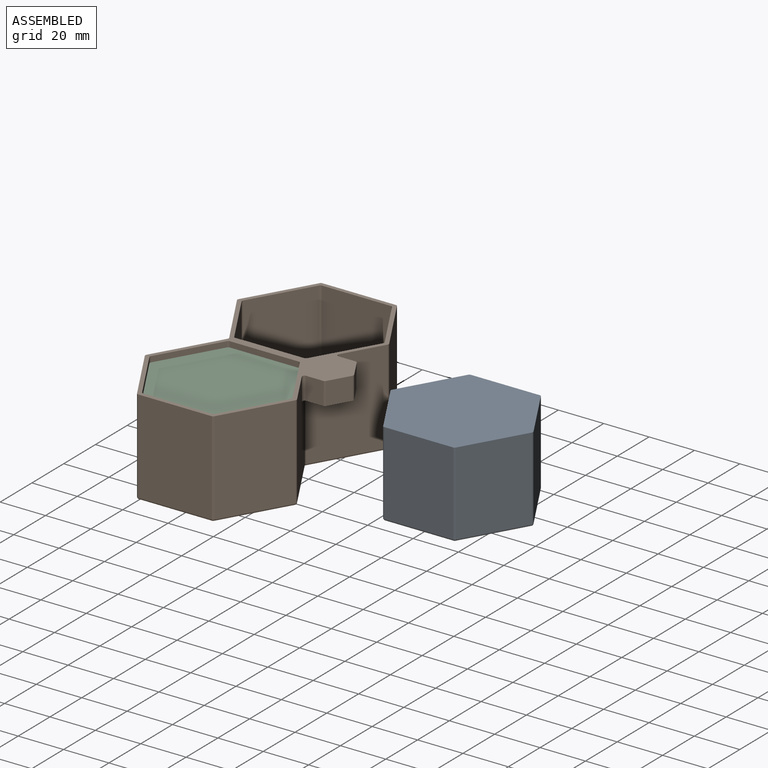
[diagram: assembled view]
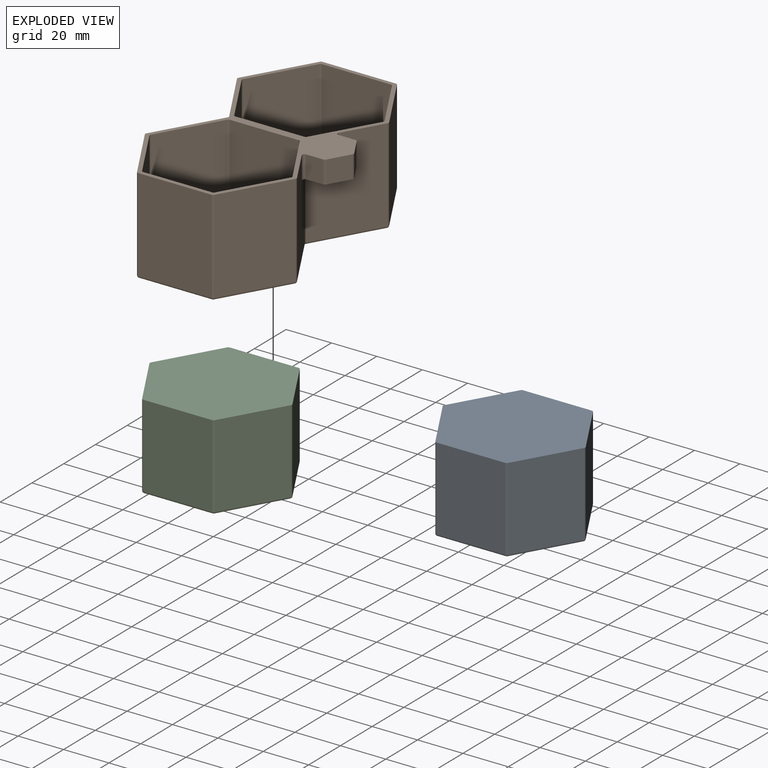
[diagram: exploded view]
GUIDED TOUR — MATED ASSEMBLY (Onshape document 8a8716e351e1fd691452806f, AutoMate assembly 8a8716e351e1fd691452806f_4f7bf178a365c5dd952efb9d_3188260d9f0f7e913d68dd80_default)

This assembly has 3 components, labeled P0..P2 below (a component is one placed occurrence of a part; the same part can appear more than once), held together by 1 mate. A mate is a constraint between two components; its type names the relative motion it leaves free:
  PLANAR — leaves sliding in the plane through the listed point (normal = the listed direction) and rotation about that normal free.
Axis/direction vectors are unit vectors and 'through' points are millimeter coordinates, both in the assembly's world frame.

MATES
  1. PLANAR "Planar 1": P2 <-> P1, direction (0.000, 0.000, -1.000) through (56.00, -6.64, 21.05) mm

ASSEMBLY ORDER
  1. P2 — the base component [order verified]
  2. P1 [order verified]
  3. P0 [order verified]
Order-tag legend:
  [order verified] — this step's position reverses a verified removal order: the component was checked to insert without passing through the ones already placed.

Of the 3 components, 1 carries the full construction recipe — the FeatureScript program that regenerates the part's solid from scratch; the rest are supplied as boundary geometry only.
Each toured component is shown spotlighted twice — in the assembled view, then in the exploded view, where a leader line traces a displaced component back to its assembled socket (saturated green if recipe-attached, orange if geometry-only; every other component desaturated gray) — followed by its recipe or geometry summary and the mates that hold it.
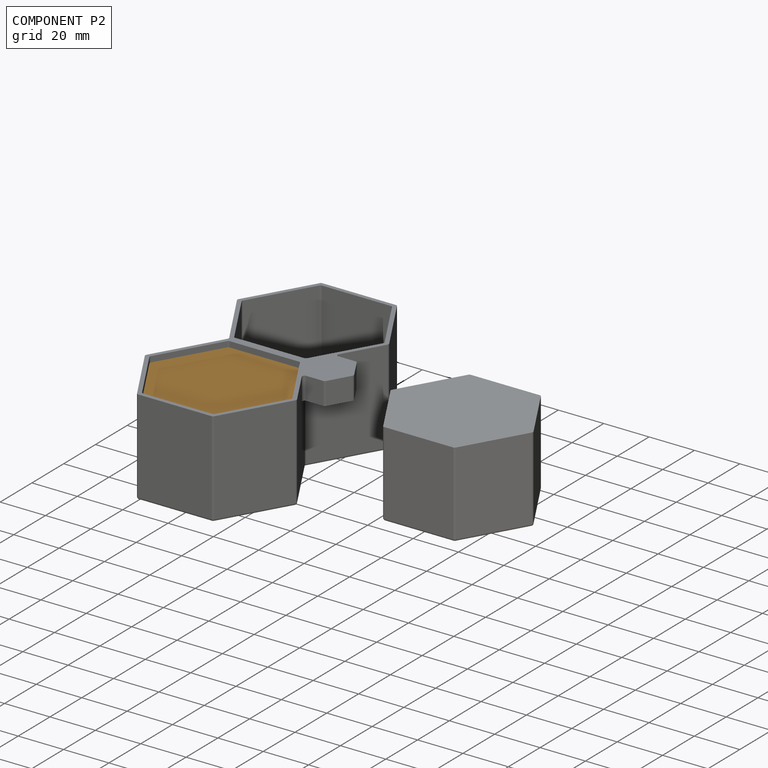
[diagram: component P2 — assembled]
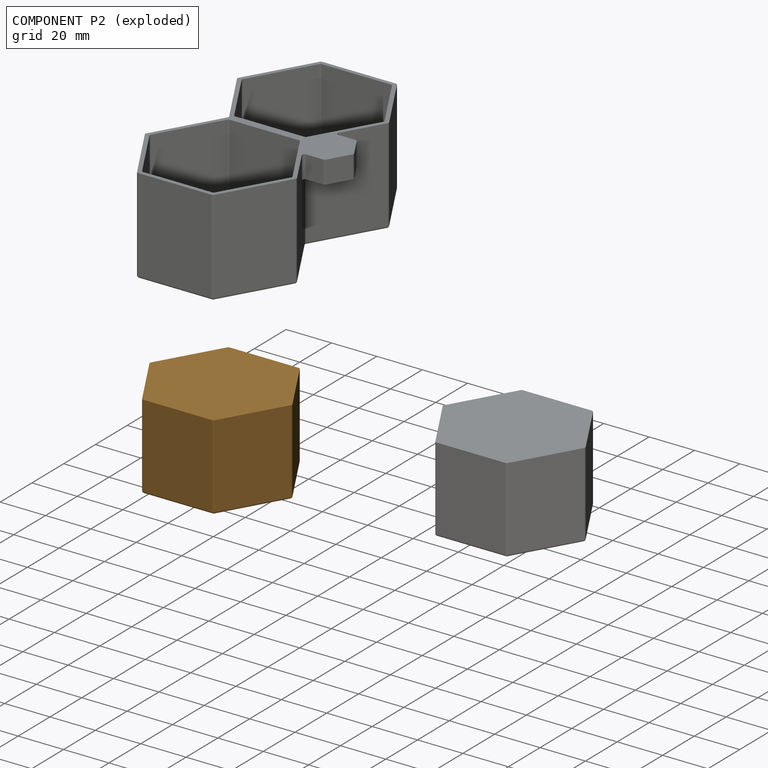
[diagram: component P2 — exploded]
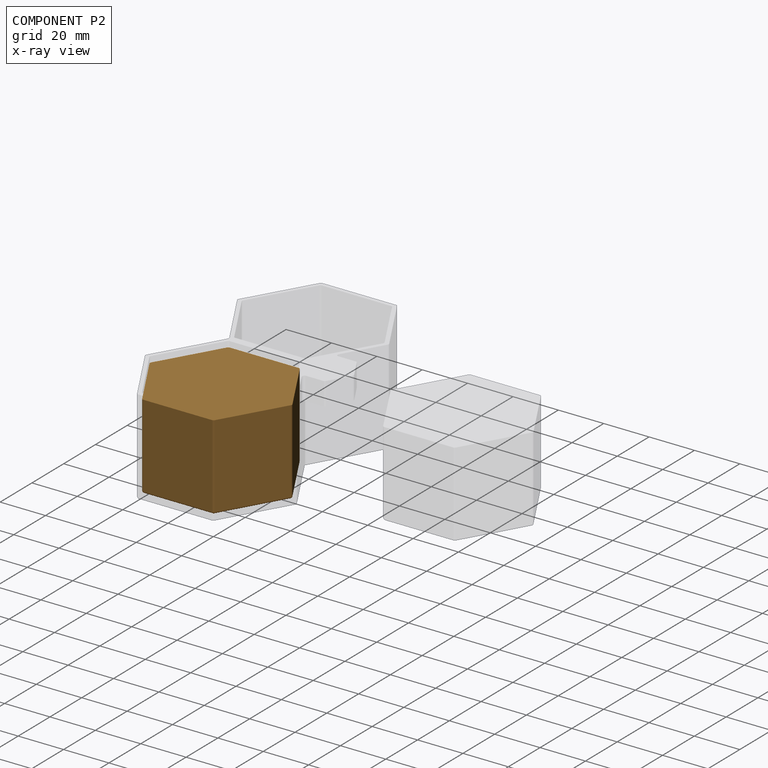
[diagram: component P2 — x-ray view]
COMPONENT P2 — geometry summary (no construction recipe available for this part):
  bounding box: 62.6 x 54.5 x 37.5 mm
  B-rep topology: 1 solid, 26 faces, 114 edges
  volume: 96410 mm^3 (75% of its bounding box)
  symmetry: 2-fold rotationally symmetric about the x axis; 2-fold rotationally symmetric about the y axis; 6-fold rotationally symmetric about the z axis; mirror-symmetric across its x mid-plane, y mid-plane, z mid-plane
Held by: PLANAR mate "Planar 1" to P1.
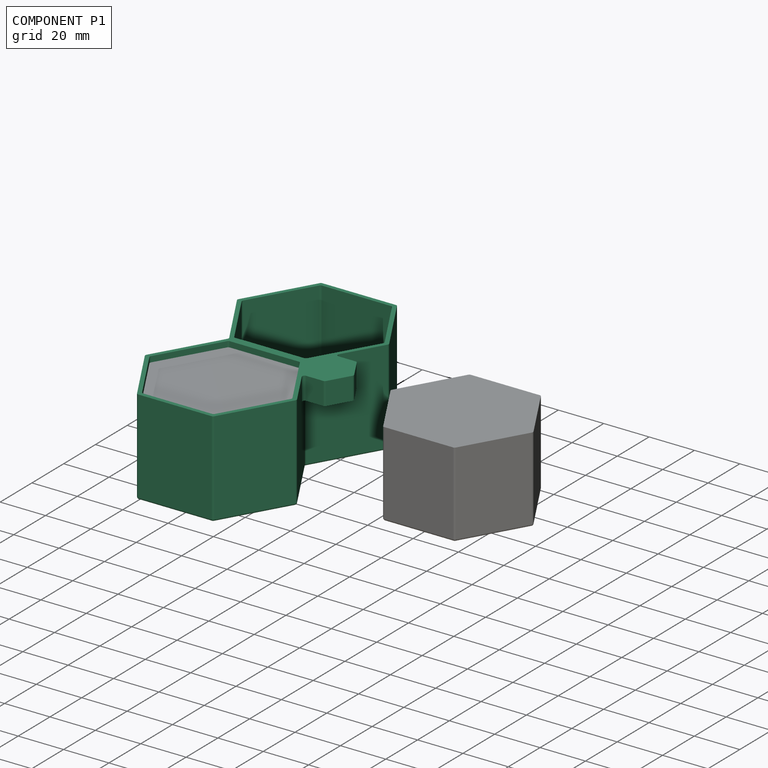
[diagram: component P1 — assembled]
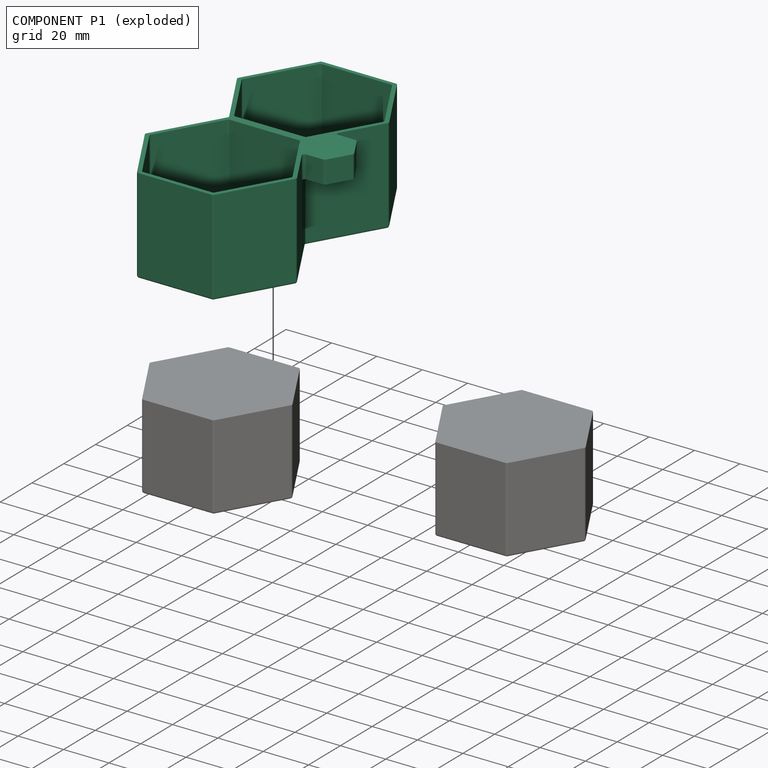
[diagram: component P1 — exploded]
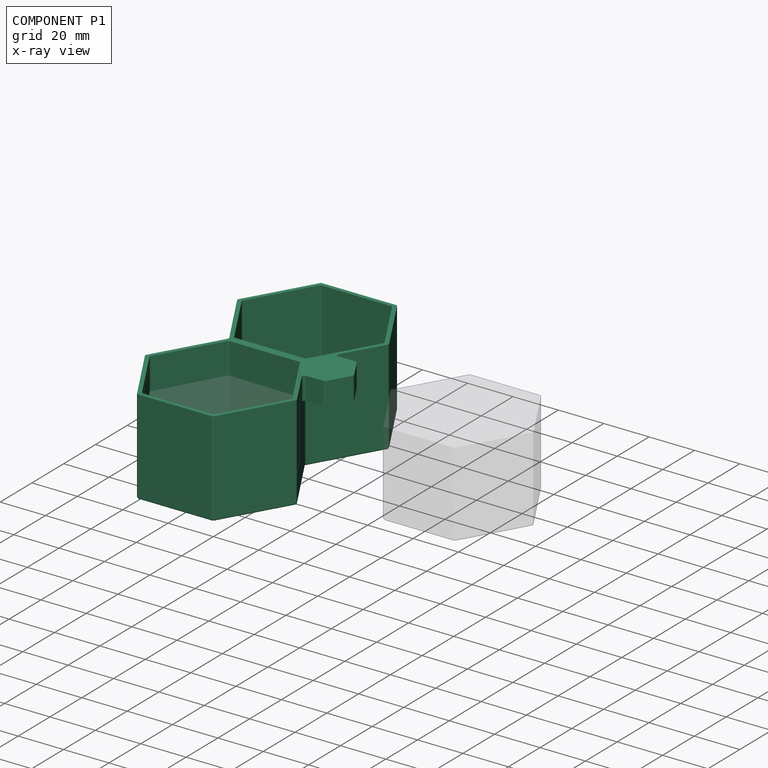
[diagram: component P1 — x-ray view]
COMPONENT P1 — recipe-attached (CADFS 00173060, mesh-verified: the recipe's output STEP matches this component's geometry to below the mesh-comparison resolution (tessellation chordal tolerance ~0.214 mm)).
Held by: PLANAR mate "Planar 1" to P2.
Construction recipe (FeatureScript — the CAD program that rebuilds this solid; sketch coordinates are in the units given by the * unit suffixes, e.g. mm):

FeatureScript 1511;
import(path : "onshape/std/geometry.fs", version : "1511.0");
import(path : "onshape/std/common.fs", version : "1511.0");
const mm = millimeter;
const VERTEX = EntityType.VERTEX;
const EDGE = EntityType.EDGE;
const FACE = EntityType.FACE;
const BODY = EntityType.BODY;
function v(x, y){return vector(x, y);}
function OD(order){return orderDisambiguation(order);}
function OSD(set){return originalSetDisambiguation(set);}
function TD(topology){return topologyDisambiguation(topology);}
function TDD(query){return trueDependencyDisambiguation(query);}
function sQuery(a, b, c) {return sketchEntityQuery(a, b, c);}

annotation { "Feature Type Name" : "Feature", "Feature Type Description" : "" }
export const myFeature = defineFeature(function(context is Context, id is Id, definition is map)
    precondition{}
    {
        {
            var Q0;
            Q0=qCreatedBy(makeId("Top.planeOp"),FACE);
            var sketch = newSketch(context, id + "F0", { "sketchPlane" : qUnion([Q0])});
            skLineSegment(sketch, "E0.1", {"start": v(-16.74, 0) * mm, "end": v(-33.49, 29) * mm});
            skLineSegment(sketch, "E0.2", {"start": v(-33.49, 29) * mm, "end": v(-16.74, 58) * mm});
            skLineSegment(sketch, "E0.3", {"start": v(-16.74, 58) * mm, "end": v(16.74, 58) * mm});
            skLineSegment(sketch, "E0.4", {"start": v(16.74, 58) * mm, "end": v(33.49, 29) * mm});
            skLineSegment(sketch, "E0.5", {"start": v(33.49, 29) * mm, "end": v(16.74, 0) * mm});
            skLineSegment(sketch, "E1.1", {"start": v(16.74, 0) * mm, "end": v(33.49, -29) * mm});
            skLineSegment(sketch, "E1.2", {"start": v(33.49, -29) * mm, "end": v(16.74, -58) * mm});
            skLineSegment(sketch, "E1.3", {"start": v(16.74, -58) * mm, "end": v(-16.74, -58) * mm});
            skLineSegment(sketch, "E1.4", {"start": v(-16.74, -58) * mm, "end": v(-33.49, -29) * mm});
            skLineSegment(sketch, "E1.5", {"start": v(-33.49, -29) * mm, "end": v(-16.74, 0) * mm});
            skSolve(sketch);
        }
        {
            var Q0;
            Q0 = qSketchRegion(id + "F0", true);
            extrude(context, id + "F1", {"entities" : qUnion([Q0]), "depth" : 42 * mm});
        }
        {
            var Q0;
            Q0=makeQuery(id+"F1.opExtrude","CAP_FACE",FACE,{"disambiguationData":[OSD([sQuery(id+"F0.wireOp",EDGE,"E0.1"),sQuery(id+"F0.wireOp",EDGE,"E0.2"),sQuery(id+"F0.wireOp",EDGE,"E0.3"),sQuery(id+"F0.wireOp",EDGE,"E0.4"),sQuery(id+"F0.wireOp",EDGE,"E0.5"),sQuery(id+"F0.wireOp",EDGE,"E1.1"),sQuery(id+"F0.wireOp",EDGE,"E1.2"),sQuery(id+"F0.wireOp",EDGE,"E1.3"),sQuery(id+"F0.wireOp",EDGE,"E1.4"),sQuery(id+"F0.wireOp",EDGE,"E1.5")])],"isStart":false});
            var sketch = newSketch(context, id + "F2", { "sketchPlane" : qUnion([Q0])});
            skLineSegment(sketch, "E2", {"start": v(0, 0) * mm, "end": v(0, -29) * mm});
            skLineSegment(sketch, "E3", {"start": v(0, 0) * mm, "end": v(0, 29) * mm});
            skCircle(sketch, "E4.cCircle", {"center": v(0, 29) * mm, "radius": 27.25 * mm, "construction": true});
            skLineSegment(sketch, "E4.0", {"start": v(15.73, 1.75) * mm, "end": v(-15.73, 1.75) * mm});
            skLineSegment(sketch, "E4.1", {"start": v(-15.73, 1.75) * mm, "end": v(-31.47, 29) * mm});
            skLineSegment(sketch, "E4.2", {"start": v(-31.47, 29) * mm, "end": v(-15.73, 56.25) * mm});
            skLineSegment(sketch, "E4.3", {"start": v(-15.73, 56.25) * mm, "end": v(15.73, 56.25) * mm});
            skLineSegment(sketch, "E4.4", {"start": v(15.73, 56.25) * mm, "end": v(31.47, 29) * mm});
            skLineSegment(sketch, "E4.5", {"start": v(31.47, 29) * mm, "end": v(15.73, 1.75) * mm});
            skPoint(sketch, "E4.0.midPoint", {"position": v(0, 1.75) * mm});
            skCircle(sketch, "E5.cCircle", {"center": v(0, -29) * mm, "radius": 27.25 * mm, "construction": true});
            skLineSegment(sketch, "E5.0", {"start": v(-15.73, -1.75) * mm, "end": v(15.73, -1.75) * mm});
            skLineSegment(sketch, "E5.1", {"start": v(15.73, -1.75) * mm, "end": v(31.47, -29) * mm});
            skLineSegment(sketch, "E5.2", {"start": v(31.47, -29) * mm, "end": v(15.73, -56.25) * mm});
            skLineSegment(sketch, "E5.3", {"start": v(15.73, -56.25) * mm, "end": v(-15.73, -56.25) * mm});
            skLineSegment(sketch, "E5.4", {"start": v(-15.73, -56.25) * mm, "end": v(-31.47, -29) * mm});
            skLineSegment(sketch, "E5.5", {"start": v(-31.47, -29) * mm, "end": v(-15.73, -1.75) * mm});
            skPoint(sketch, "E5.0.midPoint", {"position": v(0, -1.75) * mm});
            skSolve(sketch);
        }
        {
            var Q0;
            {var subQ0=sQuery(id+"F2.wireOp",EDGE,"E5.1");Q0=makeQuery(id+"F2.imprint","IMPRINT",FACE,{"disambiguationData":[TD([[makeQuery(id+"F2.imprint","IMPRINT",EDGE,{"derivedFrom":subQ0}),-1.0]])]});}
            var Q1;
            {var subQ0=sQuery(id+"F2.wireOp",EDGE,"E4.1");Q1=makeQuery(id+"F2.imprint","IMPRINT",FACE,{"disambiguationData":[TD([[makeQuery(id+"F2.imprint","IMPRINT",EDGE,{"derivedFrom":subQ0}),-1.0]])]});}
            extrude(context, id + "F3", {"entities" : qUnion([Q0, Q1]), "operationType" : NewBodyOperationType.REMOVE, "oppositeDirection" : true, "depth" : 40 * mm});
        }
        {
            var Q0;
            Q0=makeQuery(id+"F1.opExtrude","CAP_FACE",FACE,{"disambiguationData":[OSD([sQuery(id+"F0.wireOp",EDGE,"E0.1"),sQuery(id+"F0.wireOp",EDGE,"E0.2"),sQuery(id+"F0.wireOp",EDGE,"E0.3"),sQuery(id+"F0.wireOp",EDGE,"E0.4"),sQuery(id+"F0.wireOp",EDGE,"E0.5"),sQuery(id+"F0.wireOp",EDGE,"E1.1"),sQuery(id+"F0.wireOp",EDGE,"E1.2"),sQuery(id+"F0.wireOp",EDGE,"E1.3"),sQuery(id+"F0.wireOp",EDGE,"E1.4"),sQuery(id+"F0.wireOp",EDGE,"E1.5")])],"isStart":false});
            var sketch = newSketch(context, id + "F4", { "sketchPlane" : qUnion([Q0])});
            skCircle(sketch, "E6.cCircle", {"center": v(26.6, 0) * mm, "radius": 10.19 * mm, "construction": true});
            skLineSegment(sketch, "E6.0", {"start": v(20.73, 10.19) * mm, "end": v(32.49, 10.19) * mm});
            skLineSegment(sketch, "E6.1", {"start": v(32.49, 10.19) * mm, "end": v(38.37, 0) * mm});
            skLineSegment(sketch, "E6.2", {"start": v(38.37, 0) * mm, "end": v(32.49, -10.19) * mm});
            skLineSegment(sketch, "E6.3", {"start": v(32.49, -10.19) * mm, "end": v(20.73, -10.19) * mm});
            skLineSegment(sketch, "E6.4", {"start": v(20.73, -10.19) * mm, "end": v(14.85, 0) * mm});
            skLineSegment(sketch, "E6.5", {"start": v(14.85, 0) * mm, "end": v(20.73, 10.19) * mm});
            skPoint(sketch, "E6.0.midPoint", {"position": v(26.6, 10.19) * mm});
            skSolve(sketch);
        }
        {
            var Q0;
            Q0 = qSketchRegion(id + "F4", true);
            extrude(context, id + "F5", {"entities" : qUnion([Q0]), "operationType" : NewBodyOperationType.ADD, "oppositeDirection" : true, "depth" : 10 * mm});
        }
        {
            var Q0;
            Q0=makeQuery(id+"F5.opExtrude","CAP_FACE",FACE,{"disambiguationData":[OSD([sQuery(id+"F4.wireOp",EDGE,"E6.0"),sQuery(id+"F4.wireOp",EDGE,"E6.1"),sQuery(id+"F4.wireOp",EDGE,"E6.2"),sQuery(id+"F4.wireOp",EDGE,"E6.3"),sQuery(id+"F4.wireOp",EDGE,"E6.4"),sQuery(id+"F4.wireOp",EDGE,"E6.5")])],"isStart":false});
            shell(context, id + "F6", {"entities" : qUnion([Q0]), "thickness" : 1.5 * mm});
        }
        {
            var Q0;
            Q0=makeQuery(id+"F1.opExtrude","SWEPT_EDGE",EDGE,{"disambiguationData":[OSD([sQuery(id+"F0.wireOp",EDGE,"E1.4"),sQuery(id+"F0.wireOp",EDGE,"E1.5")])]});
            var Q1;
            Q1=makeQuery(id+"F1.opExtrude","SWEPT_EDGE",EDGE,{"disambiguationData":[OSD([sQuery(id+"F0.wireOp",EDGE,"E0.1"),sQuery(id+"F0.wireOp",EDGE,"E1.5")])]});
            var Q2;
            Q2=makeQuery(id+"F1.opExtrude","SWEPT_EDGE",EDGE,{"disambiguationData":[OSD([sQuery(id+"F0.wireOp",EDGE,"E0.1"),sQuery(id+"F0.wireOp",EDGE,"E0.2")])]});
            var Q3;
            Q3=makeQuery(id+"F1.opExtrude","SWEPT_EDGE",EDGE,{"disambiguationData":[OSD([sQuery(id+"F0.wireOp",EDGE,"E0.2"),sQuery(id+"F0.wireOp",EDGE,"E0.3")])]});
            var Q4;
            Q4=makeQuery(id+"F1.opExtrude","SWEPT_EDGE",EDGE,{"disambiguationData":[OSD([sQuery(id+"F0.wireOp",EDGE,"E1.3"),sQuery(id+"F0.wireOp",EDGE,"E1.4")])]});
            var Q5;
            Q5=makeQuery(id+"F1.opExtrude","SWEPT_EDGE",EDGE,{"disambiguationData":[OSD([sQuery(id+"F0.wireOp",EDGE,"E1.2"),sQuery(id+"F0.wireOp",EDGE,"E1.3")])]});
            var Q6;
            Q6=makeQuery(id+"F1.opExtrude","SWEPT_EDGE",EDGE,{"disambiguationData":[OSD([sQuery(id+"F0.wireOp",EDGE,"E1.1"),sQuery(id+"F0.wireOp",EDGE,"E1.2")])]});
            var Q7;
            Q7=makeQuery(id+"F1.opExtrude","SWEPT_EDGE",EDGE,{"disambiguationData":[OSD([sQuery(id+"F0.wireOp",EDGE,"E0.5"),sQuery(id+"F0.wireOp",EDGE,"E1.1")])]});
            var Q8;
            Q8=makeQuery(id+"F1.opExtrude","SWEPT_EDGE",EDGE,{"disambiguationData":[OSD([sQuery(id+"F0.wireOp",EDGE,"E0.4"),sQuery(id+"F0.wireOp",EDGE,"E0.5")])]});
            var Q9;
            Q9=makeQuery(id+"F1.opExtrude","SWEPT_EDGE",EDGE,{"disambiguationData":[OSD([sQuery(id+"F0.wireOp",EDGE,"E0.3"),sQuery(id+"F0.wireOp",EDGE,"E0.4")])]});
            var Q10;
            Q10=makeQuery(id+"F3.boolean.opBoolean","COPY",EDGE,{"derivedFrom":makeQuery(id+"F3.opExtrude","SWEPT_EDGE",EDGE,{"disambiguationData":[OSD([sQuery(id+"F2.wireOp",EDGE,"E4.1"),sQuery(id+"F2.wireOp",EDGE,"E4.2")])]})});
            var Q11;
            Q11=makeQuery(id+"F3.boolean.opBoolean","COPY",EDGE,{"derivedFrom":makeQuery(id+"F3.opExtrude","SWEPT_EDGE",EDGE,{"disambiguationData":[OSD([sQuery(id+"F2.wireOp",EDGE,"E4.2"),sQuery(id+"F2.wireOp",EDGE,"E4.3")])]})});
            var Q12;
            Q12=makeQuery(id+"F3.boolean.opBoolean","COPY",EDGE,{"derivedFrom":makeQuery(id+"F3.opExtrude","SWEPT_EDGE",EDGE,{"disambiguationData":[OSD([sQuery(id+"F2.wireOp",EDGE,"E4.3"),sQuery(id+"F2.wireOp",EDGE,"E4.4")])]})});
            var Q13;
            Q13=makeQuery(id+"F3.boolean.opBoolean","COPY",EDGE,{"derivedFrom":makeQuery(id+"F3.opExtrude","SWEPT_EDGE",EDGE,{"disambiguationData":[OSD([sQuery(id+"F2.wireOp",EDGE,"E4.4"),sQuery(id+"F2.wireOp",EDGE,"E4.5")])]})});
            var Q14;
            Q14=makeQuery(id+"F3.boolean.opBoolean","COPY",EDGE,{"derivedFrom":makeQuery(id+"F3.opExtrude","SWEPT_EDGE",EDGE,{"disambiguationData":[OSD([sQuery(id+"F2.wireOp",EDGE,"E4.0"),sQuery(id+"F2.wireOp",EDGE,"E4.5")])]})});
            var Q15;
            Q15=makeQuery(id+"F3.boolean.opBoolean","COPY",EDGE,{"derivedFrom":makeQuery(id+"F3.opExtrude","SWEPT_EDGE",EDGE,{"disambiguationData":[OSD([sQuery(id+"F2.wireOp",EDGE,"E4.0"),sQuery(id+"F2.wireOp",EDGE,"E4.1")])]})});
            var Q16;
            Q16=makeQuery(id+"F3.boolean.opBoolean","COPY",EDGE,{"derivedFrom":makeQuery(id+"F3.opExtrude","SWEPT_EDGE",EDGE,{"disambiguationData":[OSD([sQuery(id+"F2.wireOp",EDGE,"E5.4"),sQuery(id+"F2.wireOp",EDGE,"E5.5")])]})});
            var Q17;
            Q17=makeQuery(id+"F3.boolean.opBoolean","COPY",EDGE,{"derivedFrom":makeQuery(id+"F3.opExtrude","SWEPT_EDGE",EDGE,{"disambiguationData":[OSD([sQuery(id+"F2.wireOp",EDGE,"E5.0"),sQuery(id+"F2.wireOp",EDGE,"E5.5")])]})});
            var Q18;
            Q18=makeQuery(id+"F3.boolean.opBoolean","COPY",EDGE,{"derivedFrom":makeQuery(id+"F3.opExtrude","SWEPT_EDGE",EDGE,{"disambiguationData":[OSD([sQuery(id+"F2.wireOp",EDGE,"E5.0"),sQuery(id+"F2.wireOp",EDGE,"E5.1")])]})});
            var Q19;
            Q19=makeQuery(id+"F3.boolean.opBoolean","COPY",EDGE,{"derivedFrom":makeQuery(id+"F3.opExtrude","SWEPT_EDGE",EDGE,{"disambiguationData":[OSD([sQuery(id+"F2.wireOp",EDGE,"E5.1"),sQuery(id+"F2.wireOp",EDGE,"E5.2")])]})});
            var Q20;
            Q20=makeQuery(id+"F3.boolean.opBoolean","COPY",EDGE,{"derivedFrom":makeQuery(id+"F3.opExtrude","SWEPT_EDGE",EDGE,{"disambiguationData":[OSD([sQuery(id+"F2.wireOp",EDGE,"E5.2"),sQuery(id+"F2.wireOp",EDGE,"E5.3")])]})});
            var Q21;
            Q21=makeQuery(id+"F3.boolean.opBoolean","COPY",EDGE,{"derivedFrom":makeQuery(id+"F3.opExtrude","SWEPT_EDGE",EDGE,{"disambiguationData":[OSD([sQuery(id+"F2.wireOp",EDGE,"E5.3"),sQuery(id+"F2.wireOp",EDGE,"E5.4")])]})});
            var Q22;
            Q22=makeQuery(id+"F3.boolean.opBoolean","COPY",FACE,{"derivedFrom":makeQuery(id+"F3.opExtrude","CAP_FACE",FACE,{"disambiguationData":[OSD([sQuery(id+"F2.wireOp",EDGE,"E4.0"),sQuery(id+"F2.wireOp",EDGE,"E4.1"),sQuery(id+"F2.wireOp",EDGE,"E4.2"),sQuery(id+"F2.wireOp",EDGE,"E4.3"),sQuery(id+"F2.wireOp",EDGE,"E4.4"),sQuery(id+"F2.wireOp",EDGE,"E4.5")])],"isStart":false})});
            var Q23;
            Q23=makeQuery(id+"F3.boolean.opBoolean","COPY",FACE,{"derivedFrom":makeQuery(id+"F3.opExtrude","CAP_FACE",FACE,{"disambiguationData":[OSD([sQuery(id+"F2.wireOp",EDGE,"E5.0"),sQuery(id+"F2.wireOp",EDGE,"E5.1"),sQuery(id+"F2.wireOp",EDGE,"E5.2"),sQuery(id+"F2.wireOp",EDGE,"E5.3"),sQuery(id+"F2.wireOp",EDGE,"E5.4"),sQuery(id+"F2.wireOp",EDGE,"E5.5")])],"isStart":false})});
            var Q24;
            Q24=makeQuery(id+"F1.opExtrude","CAP_FACE",FACE,{"disambiguationData":[OSD([sQuery(id+"F0.wireOp",EDGE,"E0.1"),sQuery(id+"F0.wireOp",EDGE,"E0.2"),sQuery(id+"F0.wireOp",EDGE,"E0.3"),sQuery(id+"F0.wireOp",EDGE,"E0.4"),sQuery(id+"F0.wireOp",EDGE,"E0.5"),sQuery(id+"F0.wireOp",EDGE,"E1.1"),sQuery(id+"F0.wireOp",EDGE,"E1.2"),sQuery(id+"F0.wireOp",EDGE,"E1.3"),sQuery(id+"F0.wireOp",EDGE,"E1.4"),sQuery(id+"F0.wireOp",EDGE,"E1.5")])],"isStart":true});
            var Q25;
            Q25=makeQuery(id+"F5.boolean.opBoolean","INTERSECT",EDGE,{"derivedFrom":[makeQuery(id+"F1.opExtrude","SWEPT_FACE",FACE,{"disambiguationData":[OSD([sQuery(id+"F0.wireOp",EDGE,"E0.5")])]}),makeQuery(id+"F5.opExtrude","SWEPT_FACE",FACE,{"disambiguationData":[OSD([sQuery(id+"F4.wireOp",EDGE,"E6.0")])]})]});
            var Q26;
            Q26=makeQuery(id+"F5.opExtrude","SWEPT_EDGE",EDGE,{"disambiguationData":[OSD([sQuery(id+"F4.wireOp",EDGE,"E6.0"),sQuery(id+"F4.wireOp",EDGE,"E6.1")])]});
            var Q27;
            Q27=makeQuery(id+"F5.opExtrude","SWEPT_EDGE",EDGE,{"disambiguationData":[OSD([sQuery(id+"F4.wireOp",EDGE,"E6.1"),sQuery(id+"F4.wireOp",EDGE,"E6.2")])]});
            var Q28;
            Q28=makeQuery(id+"F5.opExtrude","SWEPT_EDGE",EDGE,{"disambiguationData":[OSD([sQuery(id+"F4.wireOp",EDGE,"E6.2"),sQuery(id+"F4.wireOp",EDGE,"E6.3")])]});
            var Q29;
            Q29=makeQuery(id+"F5.boolean.opBoolean","INTERSECT",EDGE,{"derivedFrom":[makeQuery(id+"F1.opExtrude","SWEPT_FACE",FACE,{"disambiguationData":[OSD([sQuery(id+"F0.wireOp",EDGE,"E1.1")])]}),makeQuery(id+"F5.opExtrude","SWEPT_FACE",FACE,{"disambiguationData":[OSD([sQuery(id+"F4.wireOp",EDGE,"E6.3")])]})]});
            fillet(context, id + "F7", {"entities" : qUnion([Q0, Q1, Q2, Q3, Q4, Q5, Q6, Q7, Q8, Q9, Q10, Q11, Q12, Q13, Q14, Q15, Q16, Q17, Q18, Q19, Q20, Q21, Q22, Q23, Q24, Q25, Q26, Q27, Q28, Q29]), "radius" : 1 * mm, "tangentPropagation" : true, "allowEdgeOverflow" : false});
        }
        {
            var Q0;
            Q0=makeQuery(id+"F3.boolean.opBoolean","COPY",FACE,{"derivedFrom":makeQuery(id+"F3.opExtrude","CAP_FACE",FACE,{"disambiguationData":[OSD([sQuery(id+"F2.wireOp",EDGE,"E4.0"),sQuery(id+"F2.wireOp",EDGE,"E4.1"),sQuery(id+"F2.wireOp",EDGE,"E4.2"),sQuery(id+"F2.wireOp",EDGE,"E4.3"),sQuery(id+"F2.wireOp",EDGE,"E4.4"),sQuery(id+"F2.wireOp",EDGE,"E4.5")])],"isStart":false})});
            var sketch = newSketch(context, id + "F8", { "sketchPlane" : qUnion([Q0])});
            skSolve(sketch);
        }
    });
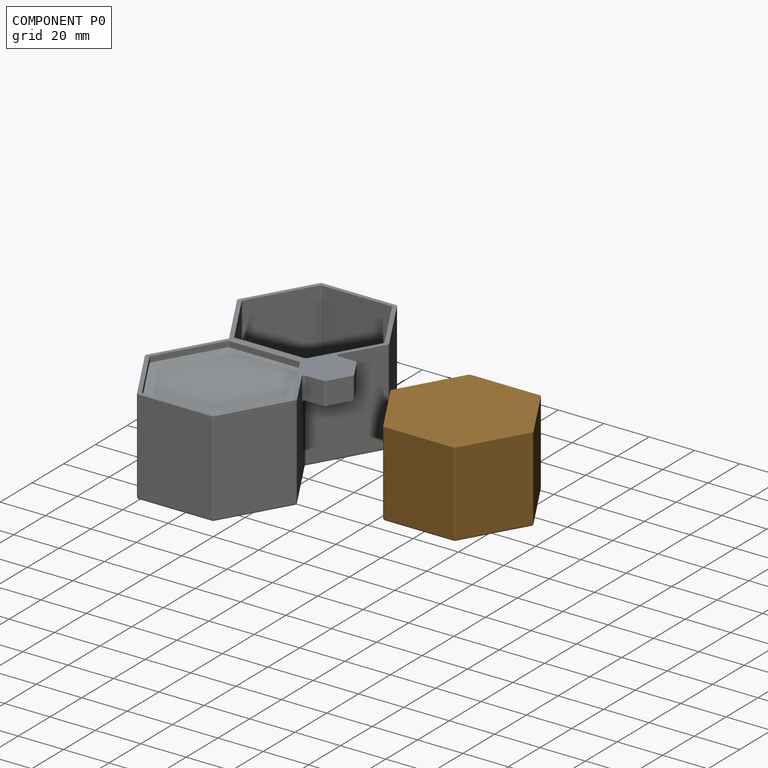
[diagram: component P0 — assembled]
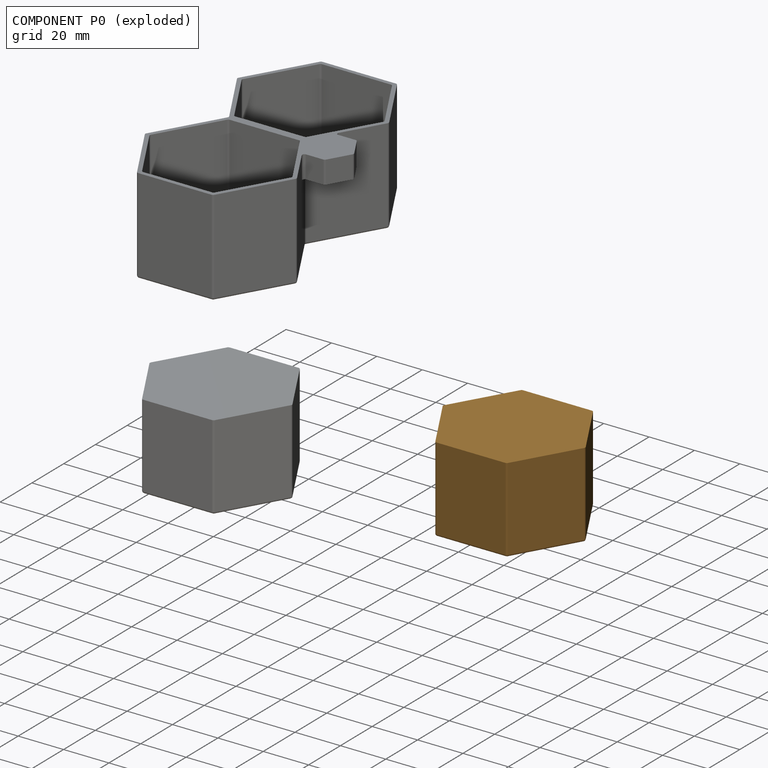
[diagram: component P0 — exploded]
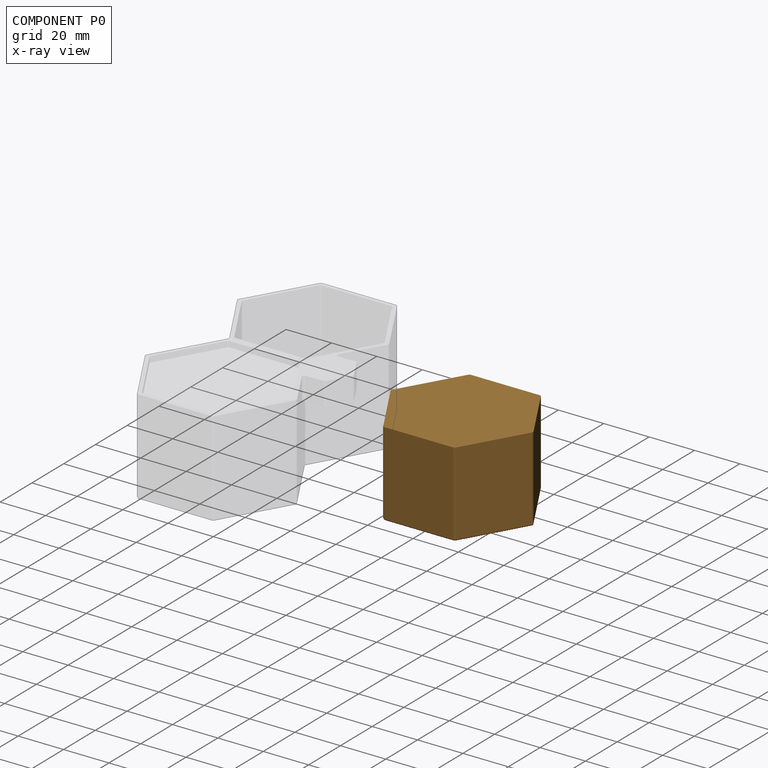
[diagram: component P0 — x-ray view]
COMPONENT P0 — geometry summary (no construction recipe available for this part):
  bounding box: 62.6 x 54.5 x 37.5 mm
  B-rep topology: 1 solid, 26 faces, 114 edges
  volume: 96410 mm^3 (75% of its bounding box)
  symmetry: 2-fold rotationally symmetric about the x axis; 2-fold rotationally symmetric about the y axis; 6-fold rotationally symmetric about the z axis; mirror-symmetric across its x mid-plane, y mid-plane, z mid-plane
Held by: no mates (free).
PROVENANCE & LICENSES
Assembly (occurrences, transforms, mates, per-part STEP geometry): AutoMate dataset, Zenodo record 7776208, CC0.
Construction recipes: CADFS (HuggingFace VladPyatov/CADFS, CC-BY-4.0, layered over the ABC dataset), FeatureScript reconstruction programs keyed by ABC model id.
Join: ABC meta listings map ABC model id -> Onshape documentId; within a shared document, parts are matched by geometric signature (bounding-box dims + volume at 0.1% relative tolerance, exact B-rep face/solid counts).
Verification: 1 of this assembly's 3 components carries a recipe attachment, and every attachment is mesh-verified: the CADFS STEP and the AutoMate member STEP were compared as meshes in their shared local frame (symmetric sampled-point-to-mesh distance); worst across the 1 attachment: below the mesh-comparison resolution (tessellation chordal tolerance ~0.214 mm) on a 143 mm part.
Renders: orthographic iso camera (az 35 / el 25); the floor grid conveys scale (grid pitch printed in each image; no ruler). In the exploded view each component is displaced by its stored offset vector: the offsets alone carry the explosion direction (mate normal/axis signs are not orientation cues and do not encode it), and separation distances are assigned per mate-chain, not proportionally to assembly-order depth.
